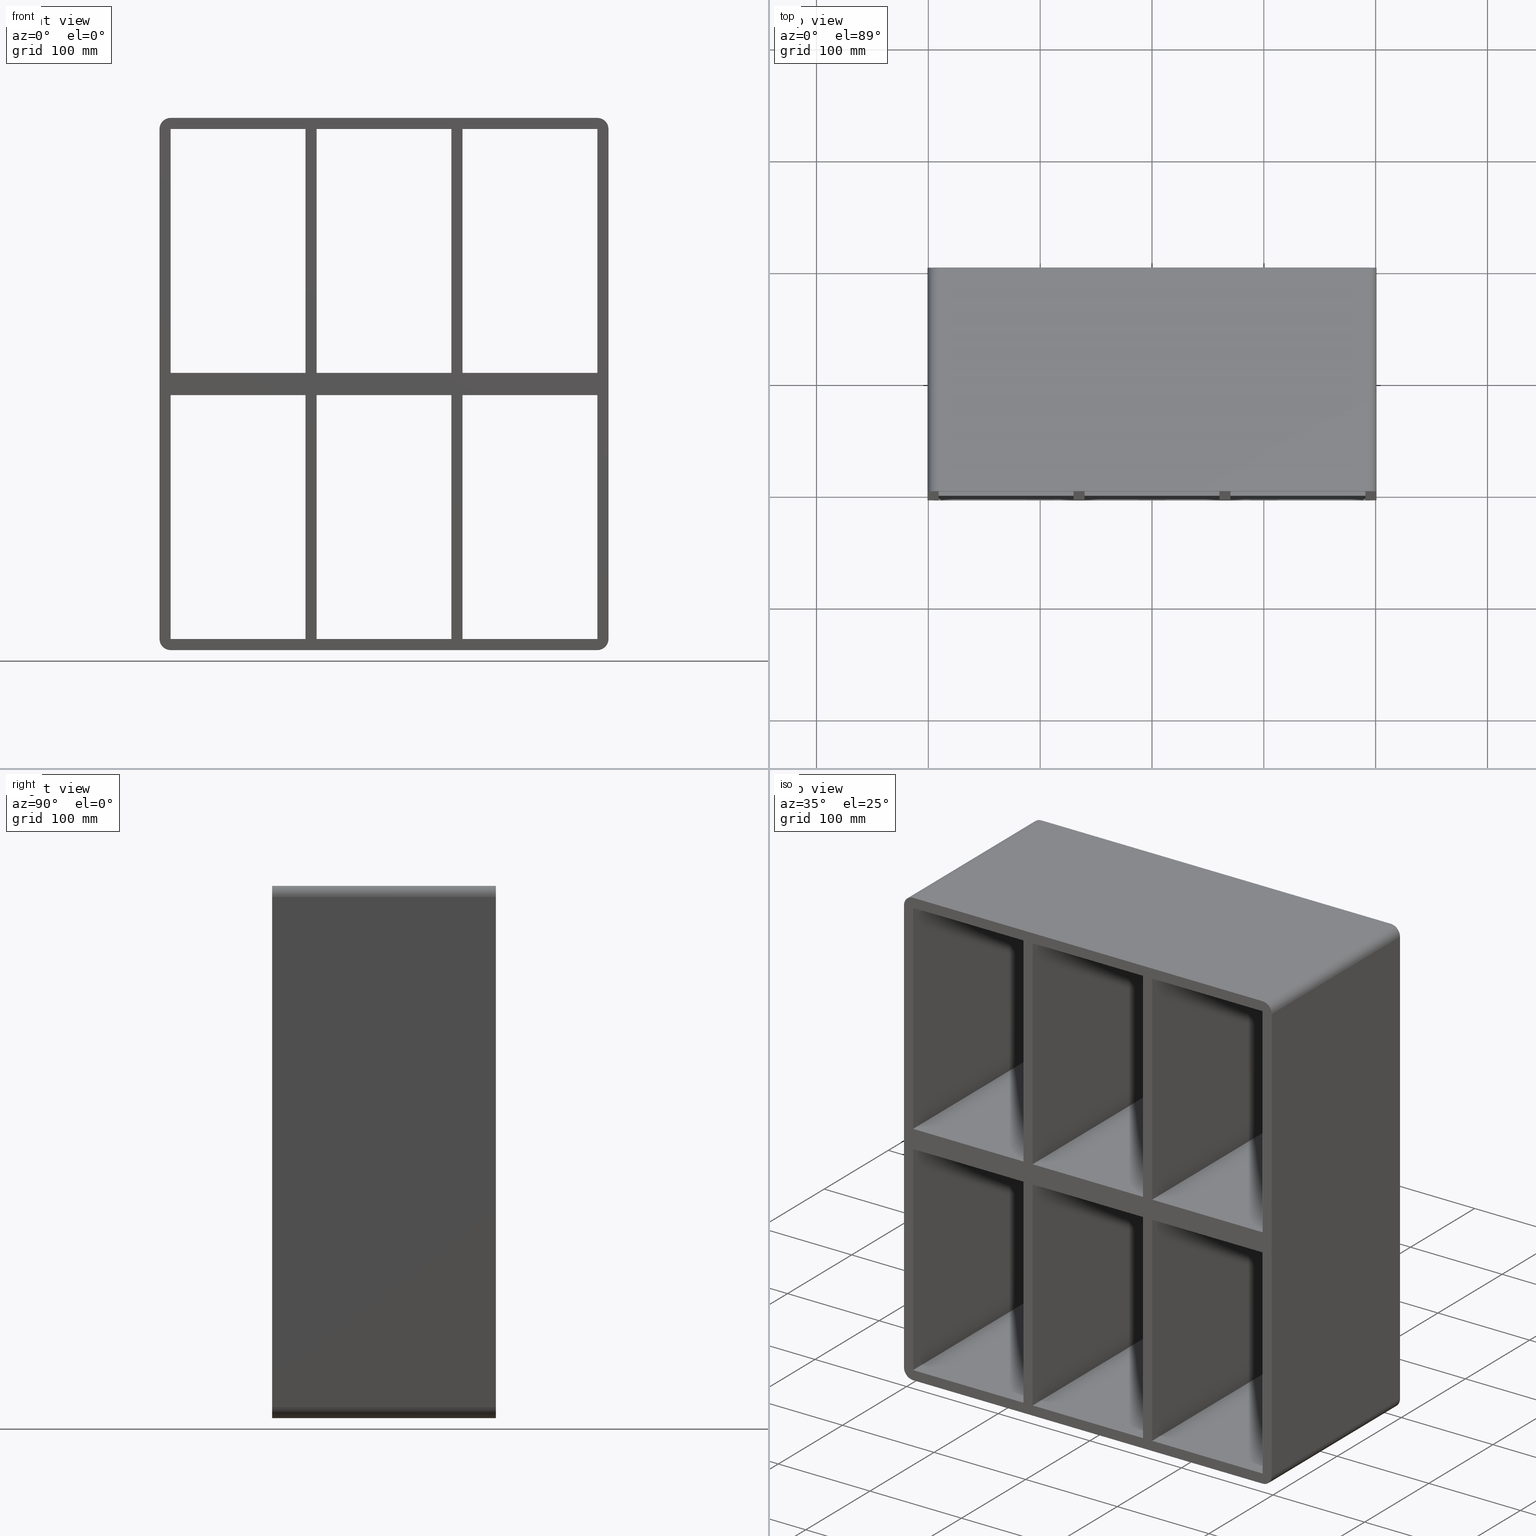
[diagram: canonical four-view strip — front | top / right | iso, engineering-drawing reading convention]
A machine part, canonical four-view strip (front | top / right | iso — engineering-drawing reading convention). The complete STEP part file that produces these views, byte-faithful:
ISO-10303-21;
HEADER;
/****************************************************************
 * Generated by software with PDElib inside                    *
 * PDElib Version v51a, created Wed 11/30/2011                  *
 * ITI Transcendata (http://www.transcendata.com/)              *
 ****************************************************************/
FILE_DESCRIPTION((''),'2;1');
FILE_NAME('C:\\RoxtecConfigurator\\CreatedFiles\\STEP\\SBTB6+6X3.stp','2013-02-26T13:33:19',(''),(''),'Autodesk Inventor 2013','Autodesk Inventor 2013','');
FILE_SCHEMA(('AUTOMOTIVE_DESIGN { 1 0 10303 214 1 1 1 1 }'));
ENDSEC;
DATA;
#5=APPLICATION_CONTEXT('automotive design');
#6=APPLICATION_PROTOCOL_DEFINITION('International Standard','automotive_design',2001,#5);
#7=PRODUCT_CONTEXT('',#5,'mechanical');
#8=PRODUCT('roxtec S_SF_G','roxtec S_SF_G',$,(#7));
#9=PRODUCT_RELATED_PRODUCT_CATEGORY('part',$,(#8));
#10=PRODUCT_DEFINITION_FORMATION('',$,#8);
#11=PRODUCT_DEFINITION_CONTEXT('part definition',#5,'design');
#12=PRODUCT_DEFINITION('',$,#10,#11);
#18=(NAMED_UNIT(*)PLANE_ANGLE_UNIT()SI_UNIT($,.RADIAN.));
#19=DIMENSIONAL_EXPONENTS(0.0,0.0,0.0,0.0,0.0,0.0,0.0);
#20=PLANE_ANGLE_MEASURE_WITH_UNIT(PLANE_ANGLE_MEASURE(0.0174532925),#18);
#24=(CONVERSION_BASED_UNIT('DEGREE',#20)NAMED_UNIT(#19)PLANE_ANGLE_UNIT());
#28=(NAMED_UNIT(*)SI_UNIT($,.STERADIAN.)SOLID_ANGLE_UNIT());
#32=(LENGTH_UNIT()NAMED_UNIT(*)SI_UNIT(.MILLI.,.METRE.));
#34=UNCERTAINTY_MEASURE_WITH_UNIT(LENGTH_MEASURE(0.01),#32,'DISTANCE_ACCURACY_VALUE','');
#36=(GEOMETRIC_REPRESENTATION_CONTEXT(3)GLOBAL_UNCERTAINTY_ASSIGNED_CONTEXT((#34))GLOBAL_UNIT_ASSIGNED_CONTEXT((#24,#28,#32))REPRESENTATION_CONTEXT('None','None'));
#37=AXIS2_PLACEMENT_3D('',#38,#39,#40);
#38=CARTESIAN_POINT('',(0.0,0.0,0.0));
#39=DIRECTION('',(0.0,0.0,1.0));
#40=DIRECTION('',(1.0,0.0,0.0));
#41=SHAPE_REPRESENTATION('',(#37),#36);
#42=PRODUCT_DEFINITION_SHAPE('','',#12);
#43=SHAPE_DEFINITION_REPRESENTATION(#42,#41);
#49=(NAMED_UNIT(*)PLANE_ANGLE_UNIT()SI_UNIT($,.RADIAN.));
#50=DIMENSIONAL_EXPONENTS(0.0,0.0,0.0,0.0,0.0,0.0,0.0);
#51=PLANE_ANGLE_MEASURE_WITH_UNIT(PLANE_ANGLE_MEASURE(0.0174532925),#49);
#55=(CONVERSION_BASED_UNIT('DEGREE',#51)NAMED_UNIT(#50)PLANE_ANGLE_UNIT());
#59=(NAMED_UNIT(*)SI_UNIT($,.STERADIAN.)SOLID_ANGLE_UNIT());
#63=(LENGTH_UNIT()NAMED_UNIT(*)SI_UNIT(.MILLI.,.METRE.));
#65=UNCERTAINTY_MEASURE_WITH_UNIT(LENGTH_MEASURE(0.000001),#63,'DISTANCE_ACCURACY_VALUE','');
#67=(GEOMETRIC_REPRESENTATION_CONTEXT(3)GLOBAL_UNCERTAINTY_ASSIGNED_CONTEXT((#65))GLOBAL_UNIT_ASSIGNED_CONTEXT((#55,#59,#63))REPRESENTATION_CONTEXT('','3D'));
#68=CARTESIAN_POINT('',(60.249999999998742,-3.0,-227.99999999999994));
#69=DIRECTION('',(-1.0,0.0,0.0));
#70=DIRECTION('',(0.0,0.0,1.0));
#71=AXIS2_PLACEMENT_3D('',#68,#69,#70);
#72=PLANE('',#71);
#73=CARTESIAN_POINT('',(60.2499999999987,-3.0,10.0));
#74=VERTEX_POINT('',#73);
#75=CARTESIAN_POINT('',(60.2499999999987,197.0,10.0));
#76=VERTEX_POINT('',#75);
#77=CARTESIAN_POINT('',(60.2499999999987,-3.0,10.0));
#78=DIRECTION('',(0.0,1.0,0.0));
#79=VECTOR('',#78,200.0);
#80=LINE('',#77,#79);
#81=EDGE_CURVE('',#74,#76,#80,.T.);
#82=ORIENTED_EDGE('',*,*,#81,.F.);
#83=CARTESIAN_POINT('',(60.24999999999865,-3.0,228.0));
#84=VERTEX_POINT('',#83);
#85=CARTESIAN_POINT('',(60.249999999998693,-3.0,10.0));
#86=DIRECTION('',(0.0,0.0,1.0));
#87=VECTOR('',#86,218.0);
#88=LINE('',#85,#87);
#89=EDGE_CURVE('',#74,#84,#88,.T.);
#90=ORIENTED_EDGE('',*,*,#89,.T.);
#91=CARTESIAN_POINT('',(60.24999999999865,197.0,228.0));
#92=VERTEX_POINT('',#91);
#93=CARTESIAN_POINT('',(60.249999999998643,196.99999999999997,227.99999999999997));
#94=DIRECTION('',(0.0,-1.0,0.0));
#95=VECTOR('',#94,199.99999999999997);
#96=LINE('',#93,#95);
#97=EDGE_CURVE('',#92,#84,#96,.T.);
#98=ORIENTED_EDGE('',*,*,#97,.F.);
#99=CARTESIAN_POINT('',(60.249999999998693,197.0,10.0));
#100=DIRECTION('',(0.0,0.0,1.0));
#101=VECTOR('',#100,218.0);
#102=LINE('',#99,#101);
#103=EDGE_CURVE('',#76,#92,#102,.T.);
#104=ORIENTED_EDGE('',*,*,#103,.F.);
#105=EDGE_LOOP('',(#82,#90,#98,#104));
#106=FACE_OUTER_BOUND('',#105,.T.);
#107=ADVANCED_FACE('',(#106),#72,.T.);
#108=CARTESIAN_POINT('',(60.249999999998742,-3.0,-227.99999999999994));
#109=DIRECTION('',(-1.0,0.0,0.0));
#110=DIRECTION('',(0.0,0.0,1.0));
#111=AXIS2_PLACEMENT_3D('',#108,#109,#110);
#112=PLANE('',#111);
#113=CARTESIAN_POINT('',(60.2499999999987,197.0,-10.00000000001787));
#114=VERTEX_POINT('',#113);
#115=CARTESIAN_POINT('',(60.2499999999987,-3.0,-10.00000000001787));
#116=VERTEX_POINT('',#115);
#117=CARTESIAN_POINT('',(60.249999999998707,197.0,-10.00000000001787));
#118=DIRECTION('',(0.0,-1.0,0.0));
#119=VECTOR('',#118,200.0);
#120=LINE('',#117,#119);
#121=EDGE_CURVE('',#114,#116,#120,.T.);
#122=ORIENTED_EDGE('',*,*,#121,.F.);
#123=CARTESIAN_POINT('',(60.249999999998742,197.0,-227.99999999999994));
#124=VERTEX_POINT('',#123);
#125=CARTESIAN_POINT('',(60.249999999998742,197.0,-227.99999999999994));
#126=DIRECTION('',(0.0,0.0,1.0));
#127=VECTOR('',#126,217.99999999998207);
#128=LINE('',#125,#127);
#129=EDGE_CURVE('',#124,#114,#128,.T.);
#130=ORIENTED_EDGE('',*,*,#129,.F.);
#131=CARTESIAN_POINT('',(60.249999999998742,-3.0,-227.99999999999994));
#132=VERTEX_POINT('',#131);
#133=CARTESIAN_POINT('',(60.249999999998742,-3.0,-227.99999999999994));
#134=DIRECTION('',(0.0,1.0,0.0));
#135=VECTOR('',#134,199.99999999999997);
#136=LINE('',#133,#135);
#137=EDGE_CURVE('',#132,#124,#136,.T.);
#138=ORIENTED_EDGE('',*,*,#137,.F.);
#139=CARTESIAN_POINT('',(60.249999999998742,-3.0,-227.99999999999994));
#140=DIRECTION('',(0.0,0.0,1.0));
#141=VECTOR('',#140,217.99999999998207);
#142=LINE('',#139,#141);
#143=EDGE_CURVE('',#132,#116,#142,.T.);
#144=ORIENTED_EDGE('',*,*,#143,.T.);
#145=EDGE_LOOP('',(#122,#130,#138,#144));
#146=FACE_OUTER_BOUND('',#145,.T.);
#147=ADVANCED_FACE('',(#146),#112,.T.);
#148=CARTESIAN_POINT('',(70.249999999985448,-3.0,228.0));
#149=DIRECTION('',(1.0,0.0,0.0));
#150=DIRECTION('',(0.0,0.0,-1.0));
#151=AXIS2_PLACEMENT_3D('',#148,#149,#150);
#152=PLANE('',#151);
#153=CARTESIAN_POINT('',(70.249999999985448,197.0,10.0));
#154=VERTEX_POINT('',#153);
#155=CARTESIAN_POINT('',(70.249999999985448,-3.0,10.0));
#156=VERTEX_POINT('',#155);
#157=CARTESIAN_POINT('',(70.249999999985448,197.0,10.0));
#158=DIRECTION('',(0.0,-1.0,0.0));
#159=VECTOR('',#158,200.0);
#160=LINE('',#157,#159);
#161=EDGE_CURVE('',#154,#156,#160,.T.);
#162=ORIENTED_EDGE('',*,*,#161,.F.);
#163=CARTESIAN_POINT('',(70.249999999985448,197.0,228.0));
#164=VERTEX_POINT('',#163);
#165=CARTESIAN_POINT('',(70.249999999985448,197.0,228.0));
#166=DIRECTION('',(0.0,0.0,-1.0));
#167=VECTOR('',#166,218.0);
#168=LINE('',#165,#167);
#169=EDGE_CURVE('',#164,#154,#168,.T.);
#170=ORIENTED_EDGE('',*,*,#169,.F.);
#171=CARTESIAN_POINT('',(70.249999999985448,-3.0,228.0));
#172=VERTEX_POINT('',#171);
#173=CARTESIAN_POINT('',(70.249999999985448,-3.0,227.99999999999997));
#174=DIRECTION('',(0.0,1.0,0.0));
#175=VECTOR('',#174,199.99999999999997);
#176=LINE('',#173,#175);
#177=EDGE_CURVE('',#172,#164,#176,.T.);
#178=ORIENTED_EDGE('',*,*,#177,.F.);
#179=CARTESIAN_POINT('',(70.249999999985448,-3.0,228.0));
#180=DIRECTION('',(0.0,0.0,-1.0));
#181=VECTOR('',#180,218.0);
#182=LINE('',#179,#181);
#183=EDGE_CURVE('',#172,#156,#182,.T.);
#184=ORIENTED_EDGE('',*,*,#183,.T.);
#185=EDGE_LOOP('',(#162,#170,#178,#184));
#186=FACE_OUTER_BOUND('',#185,.T.);
#187=ADVANCED_FACE('',(#186),#152,.T.);
#188=CARTESIAN_POINT('',(70.249999999985448,-3.0,228.0));
#189=DIRECTION('',(1.0,0.0,0.0));
#190=DIRECTION('',(0.0,0.0,-1.0));
#191=AXIS2_PLACEMENT_3D('',#188,#189,#190);
#192=PLANE('',#191);
#193=CARTESIAN_POINT('',(70.249999999985448,-3.0,-10.00000000001787));
#194=VERTEX_POINT('',#193);
#195=CARTESIAN_POINT('',(70.249999999985448,197.0,-10.00000000001787));
#196=VERTEX_POINT('',#195);
#197=CARTESIAN_POINT('',(70.249999999985448,-3.0,-10.00000000001787));
#198=DIRECTION('',(0.0,1.0,0.0));
#199=VECTOR('',#198,200.0);
#200=LINE('',#197,#199);
#201=EDGE_CURVE('',#194,#196,#200,.T.);
#202=ORIENTED_EDGE('',*,*,#201,.F.);
#203=CARTESIAN_POINT('',(70.249999999985448,-3.0,-227.9999999999707));
#204=VERTEX_POINT('',#203);
#205=CARTESIAN_POINT('',(70.249999999985448,-3.0,-10.000000000017877));
#206=DIRECTION('',(0.0,0.0,-1.0));
#207=VECTOR('',#206,217.99999999995279);
#208=LINE('',#205,#207);
#209=EDGE_CURVE('',#194,#204,#208,.T.);
#210=ORIENTED_EDGE('',*,*,#209,.T.);
#211=CARTESIAN_POINT('',(70.249999999985448,197.0,-227.99999999997067));
#212=VERTEX_POINT('',#211);
#213=CARTESIAN_POINT('',(70.249999999985448,196.99999999999997,-227.99999999999994));
#214=DIRECTION('',(0.0,-1.0,0.0));
#215=VECTOR('',#214,199.99999999999997);
#216=LINE('',#213,#215);
#217=EDGE_CURVE('',#212,#204,#216,.T.);
#218=ORIENTED_EDGE('',*,*,#217,.F.);
#219=CARTESIAN_POINT('',(70.249999999985448,197.0,-10.000000000017877));
#220=DIRECTION('',(0.0,0.0,-1.0));
#221=VECTOR('',#220,217.99999999995279);
#222=LINE('',#219,#221);
#223=EDGE_CURVE('',#196,#212,#222,.T.);
#224=ORIENTED_EDGE('',*,*,#223,.F.);
#225=EDGE_LOOP('',(#202,#210,#218,#224));
#226=FACE_OUTER_BOUND('',#225,.T.);
#227=ADVANCED_FACE('',(#226),#192,.T.);
#228=CARTESIAN_POINT('',(190.75,0.0,-227.99999999999994));
#229=DIRECTION('',(0.0,0.0,-1.0));
#230=DIRECTION('',(-1.0,0.0,0.0));
#231=AXIS2_PLACEMENT_3D('',#228,#229,#230);
#232=PLANE('',#231);
#233=ORIENTED_EDGE('',*,*,#137,.T.);
#234=CARTESIAN_POINT('',(-60.250000000014552,197.0,-227.99999999997067));
#235=VERTEX_POINT('',#234);
#236=CARTESIAN_POINT('',(-60.250000000014552,197.0,-227.99999999999994));
#237=DIRECTION('',(1.0,0.0,0.0));
#238=VECTOR('',#237,120.5000000000133);
#239=LINE('',#236,#238);
#240=EDGE_CURVE('',#235,#124,#239,.T.);
#241=ORIENTED_EDGE('',*,*,#240,.F.);
#242=CARTESIAN_POINT('',(-60.250000000014552,-3.0,-227.9999999999707));
#243=VERTEX_POINT('',#242);
#244=CARTESIAN_POINT('',(-60.250000000014552,196.99999999999997,-227.99999999999994));
#245=DIRECTION('',(0.0,-1.0,0.0));
#246=VECTOR('',#245,199.99999999999997);
#247=LINE('',#244,#246);
#248=EDGE_CURVE('',#235,#243,#247,.T.);
#249=ORIENTED_EDGE('',*,*,#248,.T.);
#250=CARTESIAN_POINT('',(60.249999999998749,-3.0,-227.99999999999994));
#251=DIRECTION('',(-1.0,0.0,0.0));
#252=VECTOR('',#251,120.5000000000133);
#253=LINE('',#250,#252);
#254=EDGE_CURVE('',#132,#243,#253,.T.);
#255=ORIENTED_EDGE('',*,*,#254,.F.);
#256=EDGE_LOOP('',(#233,#241,#249,#255));
#257=FACE_OUTER_BOUND('',#256,.T.);
#258=ADVANCED_FACE('',(#257),#232,.F.);
#259=CARTESIAN_POINT('',(190.75,0.0,-227.99999999999994));
#260=DIRECTION('',(0.0,0.0,-1.0));
#261=DIRECTION('',(-1.0,0.0,0.0));
#262=AXIS2_PLACEMENT_3D('',#259,#260,#261);
#263=PLANE('',#262);
#264=ORIENTED_EDGE('',*,*,#217,.T.);
#265=CARTESIAN_POINT('',(190.75,-3.0,-227.99999999999994));
#266=VERTEX_POINT('',#265);
#267=CARTESIAN_POINT('',(190.75,-3.0,-227.99999999999994));
#268=DIRECTION('',(-1.0,0.0,0.0));
#269=VECTOR('',#268,120.50000000001454);
#270=LINE('',#267,#269);
#271=EDGE_CURVE('',#266,#204,#270,.T.);
#272=ORIENTED_EDGE('',*,*,#271,.F.);
#273=CARTESIAN_POINT('',(190.75,197.0,-227.99999999999994));
#274=VERTEX_POINT('',#273);
#275=CARTESIAN_POINT('',(190.75,197.0,-227.99999999999994));
#276=DIRECTION('',(0.0,-1.0,0.0));
#277=VECTOR('',#276,200.0);
#278=LINE('',#275,#277);
#279=EDGE_CURVE('',#274,#266,#278,.T.);
#280=ORIENTED_EDGE('',*,*,#279,.F.);
#281=CARTESIAN_POINT('',(70.249999999985462,197.0,-227.99999999999994));
#282=DIRECTION('',(1.0,0.0,0.0));
#283=VECTOR('',#282,120.50000000001454);
#284=LINE('',#281,#283);
#285=EDGE_CURVE('',#212,#274,#284,.T.);
#286=ORIENTED_EDGE('',*,*,#285,.F.);
#287=EDGE_LOOP('',(#264,#272,#280,#286));
#288=FACE_OUTER_BOUND('',#287,.T.);
#289=ADVANCED_FACE('',(#288),#263,.F.);
#290=CARTESIAN_POINT('',(0.0,-3.0,-2.915047E-014));
#291=DIRECTION('',(0.0,1.0,0.0));
#292=DIRECTION('',(0.0,0.0,1.0));
#293=AXIS2_PLACEMENT_3D('',#290,#291,#292);
#294=PLANE('',#293);
#295=CARTESIAN_POINT('',(-190.75000000000003,-3.0,-238.00000000000006));
#296=VERTEX_POINT('',#295);
#297=CARTESIAN_POINT('',(-200.75000000000003,-3.0,-228.00000000000006));
#298=VERTEX_POINT('',#297);
#299=CARTESIAN_POINT('',(-190.75000000000003,-3.0,-228.00000000000006));
#300=DIRECTION('',(0.0,1.0,0.0));
#301=DIRECTION('',(-0.707106781186547,0.0,-0.707106781186547));
#302=AXIS2_PLACEMENT_3D('',#299,#300,#301);
#303=CIRCLE('',#302,9.999999999999998);
#304=EDGE_CURVE('',#296,#298,#303,.T.);
#305=ORIENTED_EDGE('',*,*,#304,.F.);
#306=CARTESIAN_POINT('',(190.75000000000003,-3.0,-238.00000000000006));
#307=VERTEX_POINT('',#306);
#308=CARTESIAN_POINT('',(-190.75000000000003,-3.0,-238.00000000000006));
#309=DIRECTION('',(1.0,0.0,0.0));
#310=VECTOR('',#309,381.50000000000006);
#311=LINE('',#308,#310);
#312=EDGE_CURVE('',#296,#307,#311,.T.);
#313=ORIENTED_EDGE('',*,*,#312,.T.);
#314=CARTESIAN_POINT('',(200.75000000000003,-3.0,-228.00000000000006));
#315=VERTEX_POINT('',#314);
#316=CARTESIAN_POINT('',(190.75000000000003,-3.0,-228.00000000000006));
#317=DIRECTION('',(0.0,1.0,0.0));
#318=DIRECTION('',(0.707106781186547,0.0,-0.707106781186547));
#319=AXIS2_PLACEMENT_3D('',#316,#317,#318);
#320=CIRCLE('',#319,9.999999999999998);
#321=EDGE_CURVE('',#315,#307,#320,.T.);
#322=ORIENTED_EDGE('',*,*,#321,.F.);
#323=CARTESIAN_POINT('',(200.75000000000003,-3.0,227.99999999999997));
#324=VERTEX_POINT('',#323);
#325=CARTESIAN_POINT('',(200.75000000000003,-3.0,-228.00000000000003));
#326=DIRECTION('',(0.0,0.0,1.0));
#327=VECTOR('',#326,456.0);
#328=LINE('',#325,#327);
#329=EDGE_CURVE('',#315,#324,#328,.T.);
#330=ORIENTED_EDGE('',*,*,#329,.T.);
#331=CARTESIAN_POINT('',(190.75000000000003,-3.0,237.99999999999997));
#332=VERTEX_POINT('',#331);
#333=CARTESIAN_POINT('',(190.75000000000003,-3.0,227.99999999999997));
#334=DIRECTION('',(0.0,1.0,0.0));
#335=DIRECTION('',(0.707106781186547,0.0,0.707106781186547));
#336=AXIS2_PLACEMENT_3D('',#333,#334,#335);
#337=CIRCLE('',#336,9.999999999999998);
#338=EDGE_CURVE('',#332,#324,#337,.T.);
#339=ORIENTED_EDGE('',*,*,#338,.F.);
#340=CARTESIAN_POINT('',(-190.75000000000003,-3.0,237.99999999999997));
#341=VERTEX_POINT('',#340);
#342=CARTESIAN_POINT('',(190.75000000000003,-3.0,237.99999999999997));
#343=DIRECTION('',(-1.0,0.0,0.0));
#344=VECTOR('',#343,381.50000000000006);
#345=LINE('',#342,#344);
#346=EDGE_CURVE('',#332,#341,#345,.T.);
#347=ORIENTED_EDGE('',*,*,#346,.T.);
#348=CARTESIAN_POINT('',(-200.75000000000003,-3.0,227.99999999999997));
#349=VERTEX_POINT('',#348);
#350=CARTESIAN_POINT('',(-190.75000000000003,-3.0,227.99999999999997));
#351=DIRECTION('',(0.0,1.0,0.0));
#352=DIRECTION('',(-0.707106781186547,0.0,0.707106781186547));
#353=AXIS2_PLACEMENT_3D('',#350,#351,#352);
#354=CIRCLE('',#353,9.999999999999998);
#355=EDGE_CURVE('',#349,#341,#354,.T.);
#356=ORIENTED_EDGE('',*,*,#355,.F.);
#357=CARTESIAN_POINT('',(-200.75000000000003,-3.0,227.99999999999994));
#358=DIRECTION('',(0.0,0.0,-1.0));
#359=VECTOR('',#358,456.0);
#360=LINE('',#357,#359);
#361=EDGE_CURVE('',#349,#298,#360,.T.);
#362=ORIENTED_EDGE('',*,*,#361,.T.);
#363=EDGE_LOOP('',(#305,#313,#322,#330,#339,#347,#356,#362));
#364=FACE_OUTER_BOUND('',#363,.T.);
#365=ORIENTED_EDGE('',*,*,#254,.T.);
#366=CARTESIAN_POINT('',(-60.250000000014552,-3.0,-10.000000000017888));
#367=VERTEX_POINT('',#366);
#368=CARTESIAN_POINT('',(-60.250000000014552,-3.0,-10.000000000017877));
#369=DIRECTION('',(0.0,0.0,-1.0));
#370=VECTOR('',#369,217.99999999995279);
#371=LINE('',#368,#370);
#372=EDGE_CURVE('',#367,#243,#371,.T.);
#373=ORIENTED_EDGE('',*,*,#372,.F.);
#374=CARTESIAN_POINT('',(60.249999999998693,-3.0,-10.000000000017872));
#375=DIRECTION('',(-1.0,0.0,0.0));
#376=VECTOR('',#375,120.50000000001324);
#377=LINE('',#374,#376);
#378=EDGE_CURVE('',#116,#367,#377,.T.);
#379=ORIENTED_EDGE('',*,*,#378,.F.);
#380=ORIENTED_EDGE('',*,*,#143,.F.);
#381=EDGE_LOOP('',(#365,#373,#379,#380));
#382=FACE_BOUND('',#381,.T.);
#383=CARTESIAN_POINT('',(-60.250000000014552,-3.0,10.0));
#384=VERTEX_POINT('',#383);
#385=CARTESIAN_POINT('',(-60.250000000014552,-3.0,10.0));
#386=DIRECTION('',(1.0,0.0,0.0));
#387=VECTOR('',#386,120.50000000001327);
#388=LINE('',#385,#387);
#389=EDGE_CURVE('',#384,#74,#388,.T.);
#390=ORIENTED_EDGE('',*,*,#389,.F.);
#391=CARTESIAN_POINT('',(-60.250000000014552,-3.0,228.0));
#392=VERTEX_POINT('',#391);
#393=CARTESIAN_POINT('',(-60.250000000014552,-3.0,228.0));
#394=DIRECTION('',(0.0,0.0,-1.0));
#395=VECTOR('',#394,218.0);
#396=LINE('',#393,#395);
#397=EDGE_CURVE('',#392,#384,#396,.T.);
#398=ORIENTED_EDGE('',*,*,#397,.F.);
#399=CARTESIAN_POINT('',(-60.250000000014552,-3.0,227.99999999999997));
#400=DIRECTION('',(1.0,0.0,0.0));
#401=VECTOR('',#400,120.5000000000132);
#402=LINE('',#399,#401);
#403=EDGE_CURVE('',#392,#84,#402,.T.);
#404=ORIENTED_EDGE('',*,*,#403,.T.);
#405=ORIENTED_EDGE('',*,*,#89,.F.);
#406=EDGE_LOOP('',(#390,#398,#404,#405));
#407=FACE_BOUND('',#406,.T.);
#408=ORIENTED_EDGE('',*,*,#183,.F.);
#409=CARTESIAN_POINT('',(190.75,-3.0,228.0));
#410=VERTEX_POINT('',#409);
#411=CARTESIAN_POINT('',(70.249999999985462,-3.0,227.99999999999997));
#412=DIRECTION('',(1.0,0.0,0.0));
#413=VECTOR('',#412,120.50000000001454);
#414=LINE('',#411,#413);
#415=EDGE_CURVE('',#172,#410,#414,.T.);
#416=ORIENTED_EDGE('',*,*,#415,.T.);
#417=CARTESIAN_POINT('',(190.74999999999989,-3.0,10.0));
#418=VERTEX_POINT('',#417);
#419=CARTESIAN_POINT('',(190.75,-3.0,228.0));
#420=DIRECTION('',(0.0,0.0,-1.0));
#421=VECTOR('',#420,218.0);
#422=LINE('',#419,#421);
#423=EDGE_CURVE('',#410,#418,#422,.T.);
#424=ORIENTED_EDGE('',*,*,#423,.T.);
#425=CARTESIAN_POINT('',(70.249999999985448,-3.0,10.0));
#426=DIRECTION('',(1.0,0.0,0.0));
#427=VECTOR('',#426,120.50000000001444);
#428=LINE('',#425,#427);
#429=EDGE_CURVE('',#156,#418,#428,.T.);
#430=ORIENTED_EDGE('',*,*,#429,.F.);
#431=EDGE_LOOP('',(#408,#416,#424,#430));
#432=FACE_BOUND('',#431,.T.);
#433=ORIENTED_EDGE('',*,*,#209,.F.);
#434=CARTESIAN_POINT('',(190.75000000000728,-3.0,-10.000000000017856));
#435=VERTEX_POINT('',#434);
#436=CARTESIAN_POINT('',(190.75000000000728,-3.0,-10.000000000017856));
#437=DIRECTION('',(-1.0,0.0,0.0));
#438=VECTOR('',#437,120.50000000002183);
#439=LINE('',#436,#438);
#440=EDGE_CURVE('',#435,#194,#439,.T.);
#441=ORIENTED_EDGE('',*,*,#440,.F.);
#442=CARTESIAN_POINT('',(190.75,-3.0,-10.000000000017849));
#443=DIRECTION('',(0.0,0.0,-1.0));
#444=VECTOR('',#443,217.99999999998207);
#445=LINE('',#442,#444);
#446=EDGE_CURVE('',#435,#266,#445,.T.);
#447=ORIENTED_EDGE('',*,*,#446,.T.);
#448=ORIENTED_EDGE('',*,*,#271,.T.);
#449=EDGE_LOOP('',(#433,#441,#447,#448));
#450=FACE_BOUND('',#449,.T.);
#451=CARTESIAN_POINT('',(-70.250000000001307,-3.0,-10.00000000001789));
#452=VERTEX_POINT('',#451);
#453=CARTESIAN_POINT('',(-190.74999999999966,-3.0,-10.000000000017906));
#454=VERTEX_POINT('',#453);
#455=CARTESIAN_POINT('',(-70.250000000001307,-3.0,-10.00000000001789));
#456=DIRECTION('',(-1.0,0.0,0.0));
#457=VECTOR('',#456,120.49999999999835);
#458=LINE('',#455,#457);
#459=EDGE_CURVE('',#452,#454,#458,.T.);
#460=ORIENTED_EDGE('',*,*,#459,.F.);
#461=CARTESIAN_POINT('',(-70.250000000001265,-3.0,-227.99999999999994));
#462=VERTEX_POINT('',#461);
#463=CARTESIAN_POINT('',(-70.250000000001265,-3.0,-227.99999999999994));
#464=DIRECTION('',(0.0,0.0,1.0));
#465=VECTOR('',#464,217.99999999998204);
#466=LINE('',#463,#465);
#467=EDGE_CURVE('',#462,#452,#466,.T.);
#468=ORIENTED_EDGE('',*,*,#467,.F.);
#469=CARTESIAN_POINT('',(-190.75000000000006,-3.0,-227.99999999999994));
#470=VERTEX_POINT('',#469);
#471=CARTESIAN_POINT('',(-70.250000000001279,-3.0,-227.99999999999994));
#472=DIRECTION('',(-1.0,0.0,0.0));
#473=VECTOR('',#472,120.49999999999878);
#474=LINE('',#471,#473);
#475=EDGE_CURVE('',#462,#470,#474,.T.);
#476=ORIENTED_EDGE('',*,*,#475,.T.);
#477=CARTESIAN_POINT('',(-190.75000000000003,-3.0,-227.99999999999994));
#478=DIRECTION('',(0.0,0.0,1.0));
#479=VECTOR('',#478,217.99999999998204);
#480=LINE('',#477,#479);
#481=EDGE_CURVE('',#470,#454,#480,.T.);
#482=ORIENTED_EDGE('',*,*,#481,.T.);
#483=EDGE_LOOP('',(#460,#468,#476,#482));
#484=FACE_BOUND('',#483,.T.);
#485=CARTESIAN_POINT('',(-190.74999999999966,-3.0,10.0));
#486=VERTEX_POINT('',#485);
#487=CARTESIAN_POINT('',(-190.75000000000006,-3.0,228.0));
#488=VERTEX_POINT('',#487);
#489=CARTESIAN_POINT('',(-190.75000000000003,-3.0,10.0));
#490=DIRECTION('',(0.0,0.0,1.0));
#491=VECTOR('',#490,218.0);
#492=LINE('',#489,#491);
#493=EDGE_CURVE('',#486,#488,#492,.T.);
#494=ORIENTED_EDGE('',*,*,#493,.T.);
#495=CARTESIAN_POINT('',(-70.25000000000135,-3.0,228.0));
#496=VERTEX_POINT('',#495);
#497=CARTESIAN_POINT('',(-190.75000000000006,-3.0,227.99999999999997));
#498=DIRECTION('',(1.0,0.0,0.0));
#499=VECTOR('',#498,120.49999999999871);
#500=LINE('',#497,#499);
#501=EDGE_CURVE('',#488,#496,#500,.T.);
#502=ORIENTED_EDGE('',*,*,#501,.T.);
#503=CARTESIAN_POINT('',(-70.250000000001322,-3.0,10.0));
#504=VERTEX_POINT('',#503);
#505=CARTESIAN_POINT('',(-70.250000000001307,-3.0,10.0));
#506=DIRECTION('',(0.0,0.0,1.0));
#507=VECTOR('',#506,218.0);
#508=LINE('',#505,#507);
#509=EDGE_CURVE('',#504,#496,#508,.T.);
#510=ORIENTED_EDGE('',*,*,#509,.F.);
#511=CARTESIAN_POINT('',(-190.74999999999966,-3.0,10.0));
#512=DIRECTION('',(1.0,0.0,0.0));
#513=VECTOR('',#512,120.49999999999835);
#514=LINE('',#511,#513);
#515=EDGE_CURVE('',#486,#504,#514,.T.);
#516=ORIENTED_EDGE('',*,*,#515,.F.);
#517=EDGE_LOOP('',(#494,#502,#510,#516));
#518=FACE_BOUND('',#517,.T.);
#519=ADVANCED_FACE('',(#364,#382,#407,#432,#450,#484,#518),#294,.F.);
#520=CARTESIAN_POINT('',(190.75000000000728,-3.0,-10.000000000017856));
#521=DIRECTION('',(0.0,0.0,-1.0));
#522=DIRECTION('',(-1.0,0.0,0.0));
#523=AXIS2_PLACEMENT_3D('',#520,#521,#522);
#524=PLANE('',#523);
#525=ORIENTED_EDGE('',*,*,#201,.T.);
#526=CARTESIAN_POINT('',(190.75000000000728,197.0,-10.000000000017856));
#527=VERTEX_POINT('',#526);
#528=CARTESIAN_POINT('',(190.75000000000728,197.0,-10.000000000017856));
#529=DIRECTION('',(-1.0,0.0,0.0));
#530=VECTOR('',#529,120.50000000002183);
#531=LINE('',#528,#530);
#532=EDGE_CURVE('',#527,#196,#531,.T.);
#533=ORIENTED_EDGE('',*,*,#532,.F.);
#534=CARTESIAN_POINT('',(190.75,-3.0,-10.00000000001787));
#535=DIRECTION('',(0.0,1.0,0.0));
#536=VECTOR('',#535,199.99999999999997);
#537=LINE('',#534,#536);
#538=EDGE_CURVE('',#435,#527,#537,.T.);
#539=ORIENTED_EDGE('',*,*,#538,.F.);
#540=ORIENTED_EDGE('',*,*,#440,.T.);
#541=EDGE_LOOP('',(#525,#533,#539,#540));
#542=FACE_OUTER_BOUND('',#541,.T.);
#543=ADVANCED_FACE('',(#542),#524,.T.);
#544=CARTESIAN_POINT('',(-190.74999999999966,-3.0,10.0));
#545=DIRECTION('',(0.0,0.0,1.0));
#546=DIRECTION('',(1.0,0.0,0.0));
#547=AXIS2_PLACEMENT_3D('',#544,#545,#546);
#548=PLANE('',#547);
#549=ORIENTED_EDGE('',*,*,#161,.T.);
#550=ORIENTED_EDGE('',*,*,#429,.T.);
#551=CARTESIAN_POINT('',(190.74999999999989,197.0,10.0));
#552=VERTEX_POINT('',#551);
#553=CARTESIAN_POINT('',(190.74999999999994,196.99999999999997,10.0));
#554=DIRECTION('',(0.0,-1.0,0.0));
#555=VECTOR('',#554,199.99999999999997);
#556=LINE('',#553,#555);
#557=EDGE_CURVE('',#552,#418,#556,.T.);
#558=ORIENTED_EDGE('',*,*,#557,.F.);
#559=CARTESIAN_POINT('',(70.249999999985448,197.0,10.0));
#560=DIRECTION('',(1.0,0.0,0.0));
#561=VECTOR('',#560,120.50000000001444);
#562=LINE('',#559,#561);
#563=EDGE_CURVE('',#154,#552,#562,.T.);
#564=ORIENTED_EDGE('',*,*,#563,.F.);
#565=EDGE_LOOP('',(#549,#550,#558,#564));
#566=FACE_OUTER_BOUND('',#565,.T.);
#567=ADVANCED_FACE('',(#566),#548,.T.);
#568=CARTESIAN_POINT('',(-190.75000000000003,0.0,227.99999999999997));
#569=DIRECTION('',(0.0,0.0,1.0));
#570=DIRECTION('',(1.0,0.0,0.0));
#571=AXIS2_PLACEMENT_3D('',#568,#569,#570);
#572=PLANE('',#571);
#573=ORIENTED_EDGE('',*,*,#177,.T.);
#574=CARTESIAN_POINT('',(190.75,197.0,228.0));
#575=VERTEX_POINT('',#574);
#576=CARTESIAN_POINT('',(190.75,197.0,227.99999999999997));
#577=DIRECTION('',(-1.0,0.0,0.0));
#578=VECTOR('',#577,120.50000000001454);
#579=LINE('',#576,#578);
#580=EDGE_CURVE('',#575,#164,#579,.T.);
#581=ORIENTED_EDGE('',*,*,#580,.F.);
#582=CARTESIAN_POINT('',(190.75,-3.0,227.99999999999997));
#583=DIRECTION('',(0.0,1.0,0.0));
#584=VECTOR('',#583,200.0);
#585=LINE('',#582,#584);
#586=EDGE_CURVE('',#410,#575,#585,.T.);
#587=ORIENTED_EDGE('',*,*,#586,.F.);
#588=ORIENTED_EDGE('',*,*,#415,.F.);
#589=EDGE_LOOP('',(#573,#581,#587,#588));
#590=FACE_OUTER_BOUND('',#589,.T.);
#591=ADVANCED_FACE('',(#590),#572,.F.);
#592=CARTESIAN_POINT('',(-190.75000000000003,0.0,227.99999999999997));
#593=DIRECTION('',(0.0,0.0,1.0));
#594=DIRECTION('',(1.0,0.0,0.0));
#595=AXIS2_PLACEMENT_3D('',#592,#593,#594);
#596=PLANE('',#595);
#597=ORIENTED_EDGE('',*,*,#97,.T.);
#598=ORIENTED_EDGE('',*,*,#403,.F.);
#599=CARTESIAN_POINT('',(-60.250000000014552,197.0,228.0));
#600=VERTEX_POINT('',#599);
#601=CARTESIAN_POINT('',(-60.250000000014552,-3.0,227.99999999999997));
#602=DIRECTION('',(0.0,1.0,0.0));
#603=VECTOR('',#602,199.99999999999997);
#604=LINE('',#601,#603);
#605=EDGE_CURVE('',#392,#600,#604,.T.);
#606=ORIENTED_EDGE('',*,*,#605,.T.);
#607=CARTESIAN_POINT('',(60.24999999999865,197.0,227.99999999999997));
#608=DIRECTION('',(-1.0,0.0,0.0));
#609=VECTOR('',#608,120.5000000000132);
#610=LINE('',#607,#609);
#611=EDGE_CURVE('',#92,#600,#610,.T.);
#612=ORIENTED_EDGE('',*,*,#611,.F.);
#613=EDGE_LOOP('',(#597,#598,#606,#612));
#614=FACE_OUTER_BOUND('',#613,.T.);
#615=ADVANCED_FACE('',(#614),#596,.F.);
#616=CARTESIAN_POINT('',(190.75000000000728,-3.0,-10.000000000017856));
#617=DIRECTION('',(0.0,0.0,-1.0));
#618=DIRECTION('',(-1.0,0.0,0.0));
#619=AXIS2_PLACEMENT_3D('',#616,#617,#618);
#620=PLANE('',#619);
#621=ORIENTED_EDGE('',*,*,#121,.T.);
#622=ORIENTED_EDGE('',*,*,#378,.T.);
#623=CARTESIAN_POINT('',(-60.250000000014552,197.0,-10.000000000017888));
#624=VERTEX_POINT('',#623);
#625=CARTESIAN_POINT('',(-60.250000000014552,197.0,-10.000000000017904));
#626=DIRECTION('',(0.0,-1.0,0.0));
#627=VECTOR('',#626,200.0);
#628=LINE('',#625,#627);
#629=EDGE_CURVE('',#624,#367,#628,.T.);
#630=ORIENTED_EDGE('',*,*,#629,.F.);
#631=CARTESIAN_POINT('',(60.249999999998693,197.0,-10.000000000017872));
#632=DIRECTION('',(-1.0,0.0,0.0));
#633=VECTOR('',#632,120.50000000001324);
#634=LINE('',#631,#633);
#635=EDGE_CURVE('',#114,#624,#634,.T.);
#636=ORIENTED_EDGE('',*,*,#635,.F.);
#637=EDGE_LOOP('',(#621,#622,#630,#636));
#638=FACE_OUTER_BOUND('',#637,.T.);
#639=ADVANCED_FACE('',(#638),#620,.T.);
#640=CARTESIAN_POINT('',(190.75000000000728,-3.0,-10.000000000017856));
#641=DIRECTION('',(0.0,0.0,-1.0));
#642=DIRECTION('',(-1.0,0.0,0.0));
#643=AXIS2_PLACEMENT_3D('',#640,#641,#642);
#644=PLANE('',#643);
#645=CARTESIAN_POINT('',(-70.250000000001307,197.0,-10.00000000001789));
#646=VERTEX_POINT('',#645);
#647=CARTESIAN_POINT('',(-70.250000000001307,-3.0,-10.000000000017906));
#648=DIRECTION('',(0.0,1.0,0.0));
#649=VECTOR('',#648,200.0);
#650=LINE('',#647,#649);
#651=EDGE_CURVE('',#452,#646,#650,.T.);
#652=ORIENTED_EDGE('',*,*,#651,.F.);
#653=ORIENTED_EDGE('',*,*,#459,.T.);
#654=CARTESIAN_POINT('',(-190.74999999999966,197.0,-10.000000000017906));
#655=VERTEX_POINT('',#654);
#656=CARTESIAN_POINT('',(-190.75000000000003,196.99999999999997,-10.000000000017913));
#657=DIRECTION('',(0.0,-1.0,0.0));
#658=VECTOR('',#657,199.99999999999997);
#659=LINE('',#656,#658);
#660=EDGE_CURVE('',#655,#454,#659,.T.);
#661=ORIENTED_EDGE('',*,*,#660,.F.);
#662=CARTESIAN_POINT('',(-70.250000000001307,197.0,-10.00000000001789));
#663=DIRECTION('',(-1.0,0.0,0.0));
#664=VECTOR('',#663,120.49999999999835);
#665=LINE('',#662,#664);
#666=EDGE_CURVE('',#646,#655,#665,.T.);
#667=ORIENTED_EDGE('',*,*,#666,.F.);
#668=EDGE_LOOP('',(#652,#653,#661,#667));
#669=FACE_OUTER_BOUND('',#668,.T.);
#670=ADVANCED_FACE('',(#669),#644,.T.);
#671=CARTESIAN_POINT('',(-190.74999999999966,-3.0,10.0));
#672=DIRECTION('',(0.0,0.0,1.0));
#673=DIRECTION('',(1.0,0.0,0.0));
#674=AXIS2_PLACEMENT_3D('',#671,#672,#673);
#675=PLANE('',#674);
#676=ORIENTED_EDGE('',*,*,#81,.T.);
#677=CARTESIAN_POINT('',(-60.250000000014552,197.0,10.0));
#678=VERTEX_POINT('',#677);
#679=CARTESIAN_POINT('',(-60.250000000014552,197.0,10.0));
#680=DIRECTION('',(1.0,0.0,0.0));
#681=VECTOR('',#680,120.50000000001327);
#682=LINE('',#679,#681);
#683=EDGE_CURVE('',#678,#76,#682,.T.);
#684=ORIENTED_EDGE('',*,*,#683,.F.);
#685=CARTESIAN_POINT('',(-60.250000000014552,-3.0,10.0));
#686=DIRECTION('',(0.0,1.0,0.0));
#687=VECTOR('',#686,200.0);
#688=LINE('',#685,#687);
#689=EDGE_CURVE('',#384,#678,#688,.T.);
#690=ORIENTED_EDGE('',*,*,#689,.F.);
#691=ORIENTED_EDGE('',*,*,#389,.T.);
#692=EDGE_LOOP('',(#676,#684,#690,#691));
#693=FACE_OUTER_BOUND('',#692,.T.);
#694=ADVANCED_FACE('',(#693),#675,.T.);
#695=CARTESIAN_POINT('',(-190.74999999999966,-3.0,10.0));
#696=DIRECTION('',(0.0,0.0,1.0));
#697=DIRECTION('',(1.0,0.0,0.0));
#698=AXIS2_PLACEMENT_3D('',#695,#696,#697);
#699=PLANE('',#698);
#700=CARTESIAN_POINT('',(-70.250000000001322,197.0,10.0));
#701=VERTEX_POINT('',#700);
#702=CARTESIAN_POINT('',(-70.250000000001307,197.0,10.0));
#703=DIRECTION('',(0.0,-1.0,0.0));
#704=VECTOR('',#703,200.0);
#705=LINE('',#702,#704);
#706=EDGE_CURVE('',#701,#504,#705,.T.);
#707=ORIENTED_EDGE('',*,*,#706,.F.);
#708=CARTESIAN_POINT('',(-190.74999999999966,197.0,10.0));
#709=VERTEX_POINT('',#708);
#710=CARTESIAN_POINT('',(-190.74999999999966,197.0,10.0));
#711=DIRECTION('',(1.0,0.0,0.0));
#712=VECTOR('',#711,120.49999999999835);
#713=LINE('',#710,#712);
#714=EDGE_CURVE('',#709,#701,#713,.T.);
#715=ORIENTED_EDGE('',*,*,#714,.F.);
#716=CARTESIAN_POINT('',(-190.75000000000003,-3.0,10.0));
#717=DIRECTION('',(0.0,1.0,0.0));
#718=VECTOR('',#717,199.99999999999997);
#719=LINE('',#716,#718);
#720=EDGE_CURVE('',#486,#709,#719,.T.);
#721=ORIENTED_EDGE('',*,*,#720,.F.);
#722=ORIENTED_EDGE('',*,*,#515,.T.);
#723=EDGE_LOOP('',(#707,#715,#721,#722));
#724=FACE_OUTER_BOUND('',#723,.T.);
#725=ADVANCED_FACE('',(#724),#699,.T.);
#726=CARTESIAN_POINT('',(-190.75000000000003,0.0,-227.99999999999994));
#727=DIRECTION('',(-1.0,0.0,0.0));
#728=DIRECTION('',(0.0,0.0,1.0));
#729=AXIS2_PLACEMENT_3D('',#726,#727,#728);
#730=PLANE('',#729);
#731=ORIENTED_EDGE('',*,*,#720,.T.);
#732=CARTESIAN_POINT('',(-190.75000000000006,197.0,228.0));
#733=VERTEX_POINT('',#732);
#734=CARTESIAN_POINT('',(-190.75000000000003,197.0,228.0));
#735=DIRECTION('',(0.0,0.0,-1.0));
#736=VECTOR('',#735,218.0);
#737=LINE('',#734,#736);
#738=EDGE_CURVE('',#733,#709,#737,.T.);
#739=ORIENTED_EDGE('',*,*,#738,.F.);
#740=CARTESIAN_POINT('',(-190.75000000000003,-3.0,227.99999999999997));
#741=DIRECTION('',(0.0,1.0,0.0));
#742=VECTOR('',#741,200.0);
#743=LINE('',#740,#742);
#744=EDGE_CURVE('',#488,#733,#743,.T.);
#745=ORIENTED_EDGE('',*,*,#744,.F.);
#746=ORIENTED_EDGE('',*,*,#493,.F.);
#747=EDGE_LOOP('',(#731,#739,#745,#746));
#748=FACE_OUTER_BOUND('',#747,.T.);
#749=ADVANCED_FACE('',(#748),#730,.F.);
#750=CARTESIAN_POINT('',(190.75,0.0,227.99999999999997));
#751=DIRECTION('',(1.0,0.0,0.0));
#752=DIRECTION('',(0.0,0.0,-1.0));
#753=AXIS2_PLACEMENT_3D('',#750,#751,#752);
#754=PLANE('',#753);
#755=ORIENTED_EDGE('',*,*,#538,.T.);
#756=CARTESIAN_POINT('',(190.75,197.0,-227.99999999999991));
#757=DIRECTION('',(0.0,0.0,1.0));
#758=VECTOR('',#757,217.99999999998207);
#759=LINE('',#756,#758);
#760=EDGE_CURVE('',#274,#527,#759,.T.);
#761=ORIENTED_EDGE('',*,*,#760,.F.);
#762=ORIENTED_EDGE('',*,*,#279,.T.);
#763=ORIENTED_EDGE('',*,*,#446,.F.);
#764=EDGE_LOOP('',(#755,#761,#762,#763));
#765=FACE_OUTER_BOUND('',#764,.T.);
#766=ADVANCED_FACE('',(#765),#754,.F.);
#767=CARTESIAN_POINT('',(190.75,0.0,227.99999999999997));
#768=DIRECTION('',(1.0,0.0,0.0));
#769=DIRECTION('',(0.0,0.0,-1.0));
#770=AXIS2_PLACEMENT_3D('',#767,#768,#769);
#771=PLANE('',#770);
#772=ORIENTED_EDGE('',*,*,#557,.T.);
#773=ORIENTED_EDGE('',*,*,#423,.F.);
#774=ORIENTED_EDGE('',*,*,#586,.T.);
#775=CARTESIAN_POINT('',(190.75,197.0,10.0));
#776=DIRECTION('',(0.0,0.0,1.0));
#777=VECTOR('',#776,218.0);
#778=LINE('',#775,#777);
#779=EDGE_CURVE('',#552,#575,#778,.T.);
#780=ORIENTED_EDGE('',*,*,#779,.F.);
#781=EDGE_LOOP('',(#772,#773,#774,#780));
#782=FACE_OUTER_BOUND('',#781,.T.);
#783=ADVANCED_FACE('',(#782),#771,.F.);
#784=CARTESIAN_POINT('',(0.0,197.0,-2.915047E-014));
#785=DIRECTION('',(0.0,1.0,0.0));
#786=DIRECTION('',(0.0,0.0,1.0));
#787=AXIS2_PLACEMENT_3D('',#784,#785,#786);
#788=PLANE('',#787);
#789=CARTESIAN_POINT('',(-200.75000000000003,197.0,-228.00000000000006));
#790=VERTEX_POINT('',#789);
#791=CARTESIAN_POINT('',(-190.75000000000003,197.0,-238.00000000000006));
#792=VERTEX_POINT('',#791);
#793=CARTESIAN_POINT('',(-190.75000000000003,197.0,-228.00000000000006));
#794=DIRECTION('',(0.0,-1.0,0.0));
#795=DIRECTION('',(-0.707106781186547,0.0,-0.707106781186547));
#796=AXIS2_PLACEMENT_3D('',#793,#794,#795);
#797=CIRCLE('',#796,9.999999999999998);
#798=EDGE_CURVE('',#790,#792,#797,.T.);
#799=ORIENTED_EDGE('',*,*,#798,.F.);
#800=CARTESIAN_POINT('',(-200.75000000000003,197.0,227.99999999999997));
#801=VERTEX_POINT('',#800);
#802=CARTESIAN_POINT('',(-200.75000000000003,197.0,-228.00000000000006));
#803=DIRECTION('',(0.0,0.0,1.0));
#804=VECTOR('',#803,456.0);
#805=LINE('',#802,#804);
#806=EDGE_CURVE('',#790,#801,#805,.T.);
#807=ORIENTED_EDGE('',*,*,#806,.T.);
#808=CARTESIAN_POINT('',(-190.75000000000003,197.0,237.99999999999997));
#809=VERTEX_POINT('',#808);
#810=CARTESIAN_POINT('',(-190.75000000000003,197.0,227.99999999999997));
#811=DIRECTION('',(0.0,-1.0,0.0));
#812=DIRECTION('',(-0.707106781186547,0.0,0.707106781186547));
#813=AXIS2_PLACEMENT_3D('',#810,#811,#812);
#814=CIRCLE('',#813,9.999999999999998);
#815=EDGE_CURVE('',#809,#801,#814,.T.);
#816=ORIENTED_EDGE('',*,*,#815,.F.);
#817=CARTESIAN_POINT('',(190.75000000000003,197.0,237.99999999999997));
#818=VERTEX_POINT('',#817);
#819=CARTESIAN_POINT('',(-190.75000000000003,197.0,237.99999999999997));
#820=DIRECTION('',(1.0,0.0,0.0));
#821=VECTOR('',#820,381.50000000000006);
#822=LINE('',#819,#821);
#823=EDGE_CURVE('',#809,#818,#822,.T.);
#824=ORIENTED_EDGE('',*,*,#823,.T.);
#825=CARTESIAN_POINT('',(200.75000000000003,197.0,227.99999999999997));
#826=VERTEX_POINT('',#825);
#827=CARTESIAN_POINT('',(190.75000000000003,197.0,227.99999999999997));
#828=DIRECTION('',(0.0,-1.0,0.0));
#829=DIRECTION('',(0.707106781186547,0.0,0.707106781186547));
#830=AXIS2_PLACEMENT_3D('',#827,#828,#829);
#831=CIRCLE('',#830,9.999999999999998);
#832=EDGE_CURVE('',#826,#818,#831,.T.);
#833=ORIENTED_EDGE('',*,*,#832,.F.);
#834=CARTESIAN_POINT('',(200.75000000000003,197.0,-228.00000000000006));
#835=VERTEX_POINT('',#834);
#836=CARTESIAN_POINT('',(200.75000000000003,197.0,227.99999999999997));
#837=DIRECTION('',(0.0,0.0,-1.0));
#838=VECTOR('',#837,456.0);
#839=LINE('',#836,#838);
#840=EDGE_CURVE('',#826,#835,#839,.T.);
#841=ORIENTED_EDGE('',*,*,#840,.T.);
#842=CARTESIAN_POINT('',(190.75000000000003,197.0,-238.00000000000006));
#843=VERTEX_POINT('',#842);
#844=CARTESIAN_POINT('',(190.75000000000003,197.0,-228.00000000000006));
#845=DIRECTION('',(0.0,-1.0,0.0));
#846=DIRECTION('',(0.707106781186547,0.0,-0.707106781186547));
#847=AXIS2_PLACEMENT_3D('',#844,#845,#846);
#848=CIRCLE('',#847,9.999999999999998);
#849=EDGE_CURVE('',#843,#835,#848,.T.);
#850=ORIENTED_EDGE('',*,*,#849,.F.);
#851=CARTESIAN_POINT('',(190.75000000000003,197.0,-238.00000000000006));
#852=DIRECTION('',(-1.0,0.0,0.0));
#853=VECTOR('',#852,381.50000000000006);
#854=LINE('',#851,#853);
#855=EDGE_CURVE('',#843,#792,#854,.T.);
#856=ORIENTED_EDGE('',*,*,#855,.T.);
#857=EDGE_LOOP('',(#799,#807,#816,#824,#833,#841,#850,#856));
#858=FACE_OUTER_BOUND('',#857,.T.);
#859=ORIENTED_EDGE('',*,*,#285,.T.);
#860=ORIENTED_EDGE('',*,*,#760,.T.);
#861=ORIENTED_EDGE('',*,*,#532,.T.);
#862=ORIENTED_EDGE('',*,*,#223,.T.);
#863=EDGE_LOOP('',(#859,#860,#861,#862));
#864=FACE_BOUND('',#863,.T.);
#865=ORIENTED_EDGE('',*,*,#563,.T.);
#866=ORIENTED_EDGE('',*,*,#779,.T.);
#867=ORIENTED_EDGE('',*,*,#580,.T.);
#868=ORIENTED_EDGE('',*,*,#169,.T.);
#869=EDGE_LOOP('',(#865,#866,#867,#868));
#870=FACE_BOUND('',#869,.T.);
#871=ORIENTED_EDGE('',*,*,#129,.T.);
#872=ORIENTED_EDGE('',*,*,#635,.T.);
#873=CARTESIAN_POINT('',(-60.250000000014552,197.0,-10.000000000017877));
#874=DIRECTION('',(0.0,0.0,-1.0));
#875=VECTOR('',#874,217.99999999995279);
#876=LINE('',#873,#875);
#877=EDGE_CURVE('',#624,#235,#876,.T.);
#878=ORIENTED_EDGE('',*,*,#877,.T.);
#879=ORIENTED_EDGE('',*,*,#240,.T.);
#880=EDGE_LOOP('',(#871,#872,#878,#879));
#881=FACE_BOUND('',#880,.T.);
#882=ORIENTED_EDGE('',*,*,#103,.T.);
#883=ORIENTED_EDGE('',*,*,#611,.T.);
#884=CARTESIAN_POINT('',(-60.250000000014552,197.0,228.0));
#885=DIRECTION('',(0.0,0.0,-1.0));
#886=VECTOR('',#885,218.0);
#887=LINE('',#884,#886);
#888=EDGE_CURVE('',#600,#678,#887,.T.);
#889=ORIENTED_EDGE('',*,*,#888,.T.);
#890=ORIENTED_EDGE('',*,*,#683,.T.);
#891=EDGE_LOOP('',(#882,#883,#889,#890));
#892=FACE_BOUND('',#891,.T.);
#893=CARTESIAN_POINT('',(-190.75000000000006,197.0,-227.99999999999994));
#894=VERTEX_POINT('',#893);
#895=CARTESIAN_POINT('',(-190.75000000000003,197.0,-10.000000000017906));
#896=DIRECTION('',(0.0,0.0,-1.0));
#897=VECTOR('',#896,217.99999999998204);
#898=LINE('',#895,#897);
#899=EDGE_CURVE('',#655,#894,#898,.T.);
#900=ORIENTED_EDGE('',*,*,#899,.T.);
#901=CARTESIAN_POINT('',(-70.250000000001265,197.0,-227.99999999999994));
#902=VERTEX_POINT('',#901);
#903=CARTESIAN_POINT('',(-190.75000000000006,197.0,-227.99999999999994));
#904=DIRECTION('',(1.0,0.0,0.0));
#905=VECTOR('',#904,120.49999999999878);
#906=LINE('',#903,#905);
#907=EDGE_CURVE('',#894,#902,#906,.T.);
#908=ORIENTED_EDGE('',*,*,#907,.T.);
#909=CARTESIAN_POINT('',(-70.250000000001265,197.0,-227.99999999999994));
#910=DIRECTION('',(0.0,0.0,1.0));
#911=VECTOR('',#910,217.99999999998204);
#912=LINE('',#909,#911);
#913=EDGE_CURVE('',#902,#646,#912,.T.);
#914=ORIENTED_EDGE('',*,*,#913,.T.);
#915=ORIENTED_EDGE('',*,*,#666,.T.);
#916=EDGE_LOOP('',(#900,#908,#914,#915));
#917=FACE_BOUND('',#916,.T.);
#918=ORIENTED_EDGE('',*,*,#714,.T.);
#919=CARTESIAN_POINT('',(-70.25000000000135,197.0,228.0));
#920=VERTEX_POINT('',#919);
#921=CARTESIAN_POINT('',(-70.250000000001307,197.0,10.0));
#922=DIRECTION('',(0.0,0.0,1.0));
#923=VECTOR('',#922,218.0);
#924=LINE('',#921,#923);
#925=EDGE_CURVE('',#701,#920,#924,.T.);
#926=ORIENTED_EDGE('',*,*,#925,.T.);
#927=CARTESIAN_POINT('',(-70.25000000000135,197.0,227.99999999999997));
#928=DIRECTION('',(-1.0,0.0,0.0));
#929=VECTOR('',#928,120.49999999999871);
#930=LINE('',#927,#929);
#931=EDGE_CURVE('',#920,#733,#930,.T.);
#932=ORIENTED_EDGE('',*,*,#931,.T.);
#933=ORIENTED_EDGE('',*,*,#738,.T.);
#934=EDGE_LOOP('',(#918,#926,#932,#933));
#935=FACE_BOUND('',#934,.T.);
#936=ADVANCED_FACE('',(#858,#864,#870,#881,#892,#917,#935),#788,.T.);
#937=CARTESIAN_POINT('',(-70.250000000001265,-3.0,-227.99999999999994));
#938=DIRECTION('',(-1.0,0.0,0.0));
#939=DIRECTION('',(0.0,0.0,1.0));
#940=AXIS2_PLACEMENT_3D('',#937,#938,#939);
#941=PLANE('',#940);
#942=ORIENTED_EDGE('',*,*,#706,.T.);
#943=ORIENTED_EDGE('',*,*,#509,.T.);
#944=CARTESIAN_POINT('',(-70.25000000000135,196.99999999999997,227.99999999999997));
#945=DIRECTION('',(0.0,-1.0,0.0));
#946=VECTOR('',#945,199.99999999999997);
#947=LINE('',#944,#946);
#948=EDGE_CURVE('',#920,#496,#947,.T.);
#949=ORIENTED_EDGE('',*,*,#948,.F.);
#950=ORIENTED_EDGE('',*,*,#925,.F.);
#951=EDGE_LOOP('',(#942,#943,#949,#950));
#952=FACE_OUTER_BOUND('',#951,.T.);
#953=ADVANCED_FACE('',(#952),#941,.T.);
#954=CARTESIAN_POINT('',(-60.250000000014552,-3.0,228.0));
#955=DIRECTION('',(1.0,0.0,0.0));
#956=DIRECTION('',(0.0,0.0,-1.0));
#957=AXIS2_PLACEMENT_3D('',#954,#955,#956);
#958=PLANE('',#957);
#959=ORIENTED_EDGE('',*,*,#689,.T.);
#960=ORIENTED_EDGE('',*,*,#888,.F.);
#961=ORIENTED_EDGE('',*,*,#605,.F.);
#962=ORIENTED_EDGE('',*,*,#397,.T.);
#963=EDGE_LOOP('',(#959,#960,#961,#962));
#964=FACE_OUTER_BOUND('',#963,.T.);
#965=ADVANCED_FACE('',(#964),#958,.T.);
#966=CARTESIAN_POINT('',(-70.250000000001265,-3.0,-227.99999999999994));
#967=DIRECTION('',(-1.0,0.0,0.0));
#968=DIRECTION('',(0.0,0.0,1.0));
#969=AXIS2_PLACEMENT_3D('',#966,#967,#968);
#970=PLANE('',#969);
#971=ORIENTED_EDGE('',*,*,#651,.T.);
#972=ORIENTED_EDGE('',*,*,#913,.F.);
#973=CARTESIAN_POINT('',(-70.250000000001265,-3.0,-227.99999999999994));
#974=DIRECTION('',(0.0,1.0,0.0));
#975=VECTOR('',#974,199.99999999999997);
#976=LINE('',#973,#975);
#977=EDGE_CURVE('',#462,#902,#976,.T.);
#978=ORIENTED_EDGE('',*,*,#977,.F.);
#979=ORIENTED_EDGE('',*,*,#467,.T.);
#980=EDGE_LOOP('',(#971,#972,#978,#979));
#981=FACE_OUTER_BOUND('',#980,.T.);
#982=ADVANCED_FACE('',(#981),#970,.T.);
#983=CARTESIAN_POINT('',(-60.250000000014552,-3.0,228.0));
#984=DIRECTION('',(1.0,0.0,0.0));
#985=DIRECTION('',(0.0,0.0,-1.0));
#986=AXIS2_PLACEMENT_3D('',#983,#984,#985);
#987=PLANE('',#986);
#988=ORIENTED_EDGE('',*,*,#629,.T.);
#989=ORIENTED_EDGE('',*,*,#372,.T.);
#990=ORIENTED_EDGE('',*,*,#248,.F.);
#991=ORIENTED_EDGE('',*,*,#877,.F.);
#992=EDGE_LOOP('',(#988,#989,#990,#991));
#993=FACE_OUTER_BOUND('',#992,.T.);
#994=ADVANCED_FACE('',(#993),#987,.T.);
#995=CARTESIAN_POINT('',(190.75,0.0,-227.99999999999994));
#996=DIRECTION('',(0.0,0.0,-1.0));
#997=DIRECTION('',(-1.0,0.0,0.0));
#998=AXIS2_PLACEMENT_3D('',#995,#996,#997);
#999=PLANE('',#998);
#1000=ORIENTED_EDGE('',*,*,#977,.T.);
#1001=ORIENTED_EDGE('',*,*,#907,.F.);
#1002=CARTESIAN_POINT('',(-190.75000000000003,-3.0,-227.99999999999994));
#1003=DIRECTION('',(0.0,1.0,0.0));
#1004=VECTOR('',#1003,200.0);
#1005=LINE('',#1002,#1004);
#1006=EDGE_CURVE('',#470,#894,#1005,.T.);
#1007=ORIENTED_EDGE('',*,*,#1006,.F.);
#1008=ORIENTED_EDGE('',*,*,#475,.F.);
#1009=EDGE_LOOP('',(#1000,#1001,#1007,#1008));
#1010=FACE_OUTER_BOUND('',#1009,.T.);
#1011=ADVANCED_FACE('',(#1010),#999,.F.);
#1012=CARTESIAN_POINT('',(-190.75000000000003,0.0,227.99999999999997));
#1013=DIRECTION('',(0.0,0.0,1.0));
#1014=DIRECTION('',(1.0,0.0,0.0));
#1015=AXIS2_PLACEMENT_3D('',#1012,#1013,#1014);
#1016=PLANE('',#1015);
#1017=ORIENTED_EDGE('',*,*,#948,.T.);
#1018=ORIENTED_EDGE('',*,*,#501,.F.);
#1019=ORIENTED_EDGE('',*,*,#744,.T.);
#1020=ORIENTED_EDGE('',*,*,#931,.F.);
#1021=EDGE_LOOP('',(#1017,#1018,#1019,#1020));
#1022=FACE_OUTER_BOUND('',#1021,.T.);
#1023=ADVANCED_FACE('',(#1022),#1016,.F.);
#1024=CARTESIAN_POINT('',(-190.75000000000003,0.0,-228.00000000000006));
#1025=DIRECTION('',(0.0,1.0,0.0));
#1026=DIRECTION('',(-0.707106781186547,0.0,-0.707106781186547));
#1027=AXIS2_PLACEMENT_3D('',#1024,#1025,#1026);
#1028=CYLINDRICAL_SURFACE('',#1027,10.0);
#1029=ORIENTED_EDGE('',*,*,#798,.T.);
#1030=CARTESIAN_POINT('',(-190.75000000000003,197.0,-238.00000000000006));
#1031=DIRECTION('',(0.0,-1.0,0.0));
#1032=VECTOR('',#1031,200.0);
#1033=LINE('',#1030,#1032);
#1034=EDGE_CURVE('',#792,#296,#1033,.T.);
#1035=ORIENTED_EDGE('',*,*,#1034,.T.);
#1036=ORIENTED_EDGE('',*,*,#304,.T.);
#1037=CARTESIAN_POINT('',(-200.75000000000003,-3.0,-228.00000000000006));
#1038=DIRECTION('',(0.0,1.0,0.0));
#1039=VECTOR('',#1038,200.0);
#1040=LINE('',#1037,#1039);
#1041=EDGE_CURVE('',#298,#790,#1040,.T.);
#1042=ORIENTED_EDGE('',*,*,#1041,.T.);
#1043=EDGE_LOOP('',(#1029,#1035,#1036,#1042));
#1044=FACE_OUTER_BOUND('',#1043,.T.);
#1045=ADVANCED_FACE('',(#1044),#1028,.T.);
#1046=CARTESIAN_POINT('',(200.75000000000003,0.0,-238.00000000000006));
#1047=DIRECTION('',(0.0,0.0,-1.0));
#1048=DIRECTION('',(-1.0,0.0,0.0));
#1049=AXIS2_PLACEMENT_3D('',#1046,#1047,#1048);
#1050=PLANE('',#1049);
#1051=ORIENTED_EDGE('',*,*,#1034,.F.);
#1052=ORIENTED_EDGE('',*,*,#855,.F.);
#1053=CARTESIAN_POINT('',(190.75000000000003,-3.0,-238.00000000000006));
#1054=DIRECTION('',(0.0,1.0,0.0));
#1055=VECTOR('',#1054,200.0);
#1056=LINE('',#1053,#1055);
#1057=EDGE_CURVE('',#307,#843,#1056,.T.);
#1058=ORIENTED_EDGE('',*,*,#1057,.F.);
#1059=ORIENTED_EDGE('',*,*,#312,.F.);
#1060=EDGE_LOOP('',(#1051,#1052,#1058,#1059));
#1061=FACE_OUTER_BOUND('',#1060,.T.);
#1062=ADVANCED_FACE('',(#1061),#1050,.T.);
#1063=CARTESIAN_POINT('',(190.75000000000003,0.0,-228.00000000000006));
#1064=DIRECTION('',(0.0,1.0,0.0));
#1065=DIRECTION('',(0.707106781186547,0.0,-0.707106781186547));
#1066=AXIS2_PLACEMENT_3D('',#1063,#1064,#1065);
#1067=CYLINDRICAL_SURFACE('',#1066,10.0);
#1068=ORIENTED_EDGE('',*,*,#849,.T.);
#1069=CARTESIAN_POINT('',(200.75000000000003,197.0,-228.00000000000006));
#1070=DIRECTION('',(0.0,-1.0,0.0));
#1071=VECTOR('',#1070,200.0);
#1072=LINE('',#1069,#1071);
#1073=EDGE_CURVE('',#835,#315,#1072,.T.);
#1074=ORIENTED_EDGE('',*,*,#1073,.T.);
#1075=ORIENTED_EDGE('',*,*,#321,.T.);
#1076=ORIENTED_EDGE('',*,*,#1057,.T.);
#1077=EDGE_LOOP('',(#1068,#1074,#1075,#1076));
#1078=FACE_OUTER_BOUND('',#1077,.T.);
#1079=ADVANCED_FACE('',(#1078),#1067,.T.);
#1080=CARTESIAN_POINT('',(190.75000000000003,0.0,227.99999999999997));
#1081=DIRECTION('',(0.0,-1.0,0.0));
#1082=DIRECTION('',(0.707106781186547,0.0,0.707106781186547));
#1083=AXIS2_PLACEMENT_3D('',#1080,#1081,#1082);
#1084=CYLINDRICAL_SURFACE('',#1083,10.0);
#1085=ORIENTED_EDGE('',*,*,#338,.T.);
#1086=CARTESIAN_POINT('',(200.75000000000003,-3.0,227.99999999999997));
#1087=DIRECTION('',(0.0,1.0,0.0));
#1088=VECTOR('',#1087,200.0);
#1089=LINE('',#1086,#1088);
#1090=EDGE_CURVE('',#324,#826,#1089,.T.);
#1091=ORIENTED_EDGE('',*,*,#1090,.T.);
#1092=ORIENTED_EDGE('',*,*,#832,.T.);
#1093=CARTESIAN_POINT('',(190.75000000000003,197.0,237.99999999999997));
#1094=DIRECTION('',(0.0,-1.0,0.0));
#1095=VECTOR('',#1094,200.0);
#1096=LINE('',#1093,#1095);
#1097=EDGE_CURVE('',#818,#332,#1096,.T.);
#1098=ORIENTED_EDGE('',*,*,#1097,.T.);
#1099=EDGE_LOOP('',(#1085,#1091,#1092,#1098));
#1100=FACE_OUTER_BOUND('',#1099,.T.);
#1101=ADVANCED_FACE('',(#1100),#1084,.T.);
#1102=CARTESIAN_POINT('',(-200.75000000000003,0.0,237.99999999999997));
#1103=DIRECTION('',(0.0,0.0,1.0));
#1104=DIRECTION('',(1.0,0.0,0.0));
#1105=AXIS2_PLACEMENT_3D('',#1102,#1103,#1104);
#1106=PLANE('',#1105);
#1107=ORIENTED_EDGE('',*,*,#1097,.F.);
#1108=ORIENTED_EDGE('',*,*,#823,.F.);
#1109=CARTESIAN_POINT('',(-190.75000000000003,-3.0,237.99999999999997));
#1110=DIRECTION('',(0.0,1.0,0.0));
#1111=VECTOR('',#1110,200.0);
#1112=LINE('',#1109,#1111);
#1113=EDGE_CURVE('',#341,#809,#1112,.T.);
#1114=ORIENTED_EDGE('',*,*,#1113,.F.);
#1115=ORIENTED_EDGE('',*,*,#346,.F.);
#1116=EDGE_LOOP('',(#1107,#1108,#1114,#1115));
#1117=FACE_OUTER_BOUND('',#1116,.T.);
#1118=ADVANCED_FACE('',(#1117),#1106,.T.);
#1119=CARTESIAN_POINT('',(-190.75000000000003,0.0,227.99999999999997));
#1120=DIRECTION('',(0.0,1.0,0.0));
#1121=DIRECTION('',(-0.707106781186547,0.0,0.707106781186547));
#1122=AXIS2_PLACEMENT_3D('',#1119,#1120,#1121);
#1123=CYLINDRICAL_SURFACE('',#1122,10.0);
#1124=ORIENTED_EDGE('',*,*,#815,.T.);
#1125=CARTESIAN_POINT('',(-200.75000000000003,197.0,227.99999999999997));
#1126=DIRECTION('',(0.0,-1.0,0.0));
#1127=VECTOR('',#1126,200.0);
#1128=LINE('',#1125,#1127);
#1129=EDGE_CURVE('',#801,#349,#1128,.T.);
#1130=ORIENTED_EDGE('',*,*,#1129,.T.);
#1131=ORIENTED_EDGE('',*,*,#355,.T.);
#1132=ORIENTED_EDGE('',*,*,#1113,.T.);
#1133=EDGE_LOOP('',(#1124,#1130,#1131,#1132));
#1134=FACE_OUTER_BOUND('',#1133,.T.);
#1135=ADVANCED_FACE('',(#1134),#1123,.T.);
#1136=CARTESIAN_POINT('',(-190.75000000000003,0.0,-227.99999999999994));
#1137=DIRECTION('',(-1.0,0.0,0.0));
#1138=DIRECTION('',(0.0,0.0,1.0));
#1139=AXIS2_PLACEMENT_3D('',#1136,#1137,#1138);
#1140=PLANE('',#1139);
#1141=ORIENTED_EDGE('',*,*,#660,.T.);
#1142=ORIENTED_EDGE('',*,*,#481,.F.);
#1143=ORIENTED_EDGE('',*,*,#1006,.T.);
#1144=ORIENTED_EDGE('',*,*,#899,.F.);
#1145=EDGE_LOOP('',(#1141,#1142,#1143,#1144));
#1146=FACE_OUTER_BOUND('',#1145,.T.);
#1147=ADVANCED_FACE('',(#1146),#1140,.F.);
#1148=CARTESIAN_POINT('',(-200.75000000000003,0.0,-238.00000000000006));
#1149=DIRECTION('',(-1.0,0.0,0.0));
#1150=DIRECTION('',(0.0,0.0,1.0));
#1151=AXIS2_PLACEMENT_3D('',#1148,#1149,#1150);
#1152=PLANE('',#1151);
#1153=ORIENTED_EDGE('',*,*,#1041,.F.);
#1154=ORIENTED_EDGE('',*,*,#361,.F.);
#1155=ORIENTED_EDGE('',*,*,#1129,.F.);
#1156=ORIENTED_EDGE('',*,*,#806,.F.);
#1157=EDGE_LOOP('',(#1153,#1154,#1155,#1156));
#1158=FACE_OUTER_BOUND('',#1157,.T.);
#1159=ADVANCED_FACE('',(#1158),#1152,.T.);
#1160=CARTESIAN_POINT('',(200.75000000000003,0.0,237.99999999999997));
#1161=DIRECTION('',(1.0,0.0,0.0));
#1162=DIRECTION('',(0.0,0.0,-1.0));
#1163=AXIS2_PLACEMENT_3D('',#1160,#1161,#1162);
#1164=PLANE('',#1163);
#1165=ORIENTED_EDGE('',*,*,#1073,.F.);
#1166=ORIENTED_EDGE('',*,*,#840,.F.);
#1167=ORIENTED_EDGE('',*,*,#1090,.F.);
#1168=ORIENTED_EDGE('',*,*,#329,.F.);
#1169=EDGE_LOOP('',(#1165,#1166,#1167,#1168));
#1170=FACE_OUTER_BOUND('',#1169,.T.);
#1171=ADVANCED_FACE('',(#1170),#1164,.T.);
#1172=CLOSED_SHELL('',(#107,#147,#187,#227,#258,#289,#519,#543,#567,#591,#615,#639,#670,#694,#725,#749,#766,#783,#936,#953,#965,#982,#994,#1011,#1023,#1045,#1062,#1079,#1101,#1118,#1135,#1147,#1159,#1171));
#1173=MANIFOLD_SOLID_BREP('Solid1',#1172);
#1174=COLOUR_RGB('Silicon Nitride - Polished',0.800000011920929,0.796078443527222,0.701960802078247);
#1175=FILL_AREA_STYLE_COLOUR('Silicon Nitride - Polished',#1174);
#1176=FILL_AREA_STYLE('Silicon Nitride - Polished',(#1175));
#1177=SURFACE_STYLE_FILL_AREA(#1176);
#1178=SURFACE_SIDE_STYLE('Silicon Nitride - Polished',(#1177));
#1179=SURFACE_STYLE_USAGE(.BOTH.,#1178);
#1180=PRESENTATION_STYLE_ASSIGNMENT((#1179));
#1181=STYLED_ITEM('',(#1180),#1173);
#1182=MECHANICAL_DESIGN_GEOMETRIC_PRESENTATION_REPRESENTATION('',(#1181),#36);
#1183=ADVANCED_BREP_SHAPE_REPRESENTATION('ABSR',(#1173),#36);
#1184=SHAPE_REPRESENTATION_RELATIONSHIP('SRR','None',#1183,#41);
ENDSEC;
END-ISO-10303-21;
